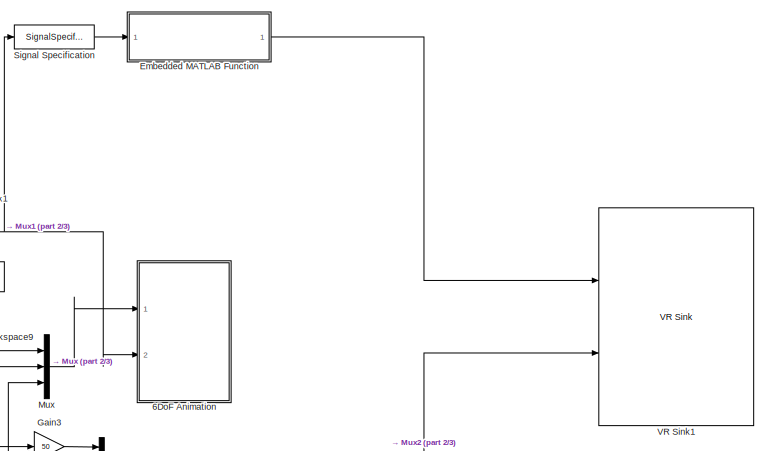
[diagram: root canvas - part 1/3, middle right region]
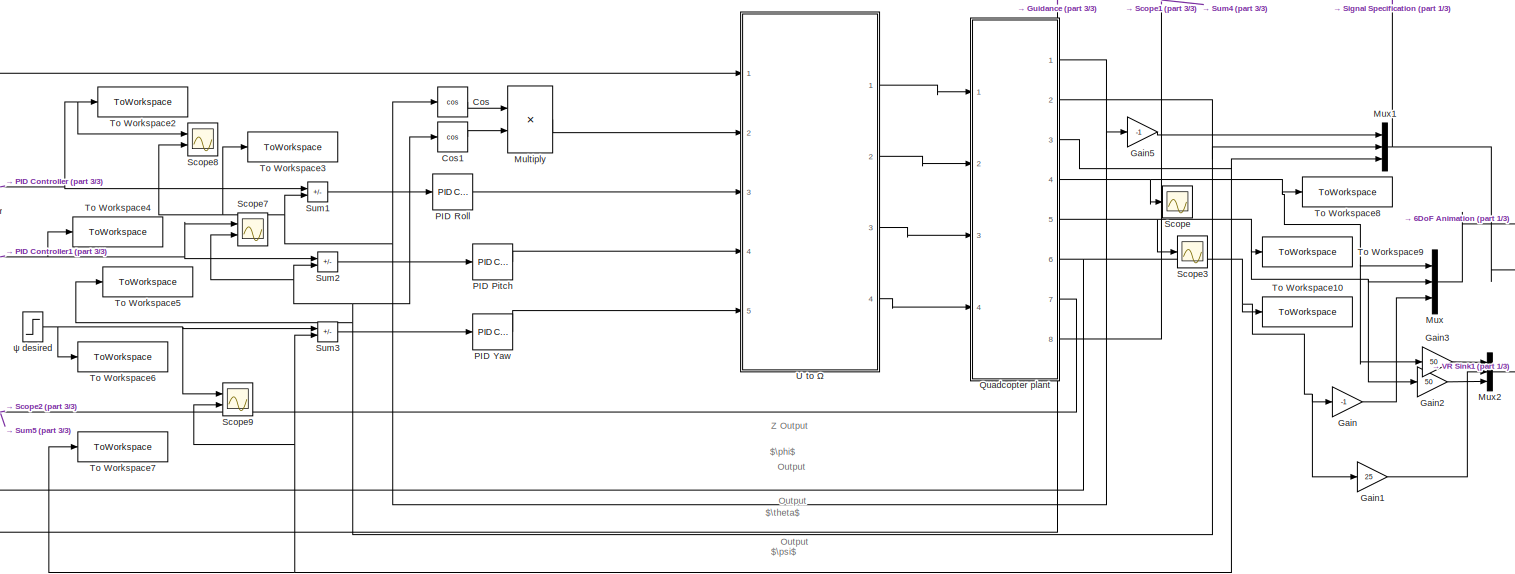
[diagram: root canvas - part 2/3, center side, full height]
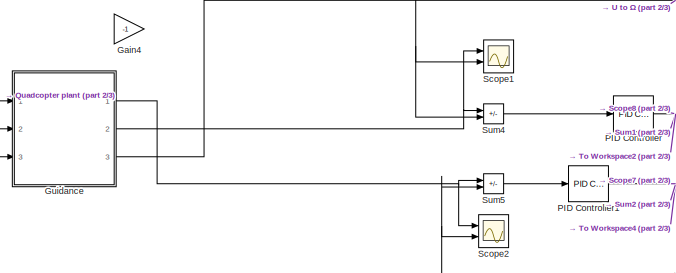
[diagram: root canvas - part 3/3, middle left region]
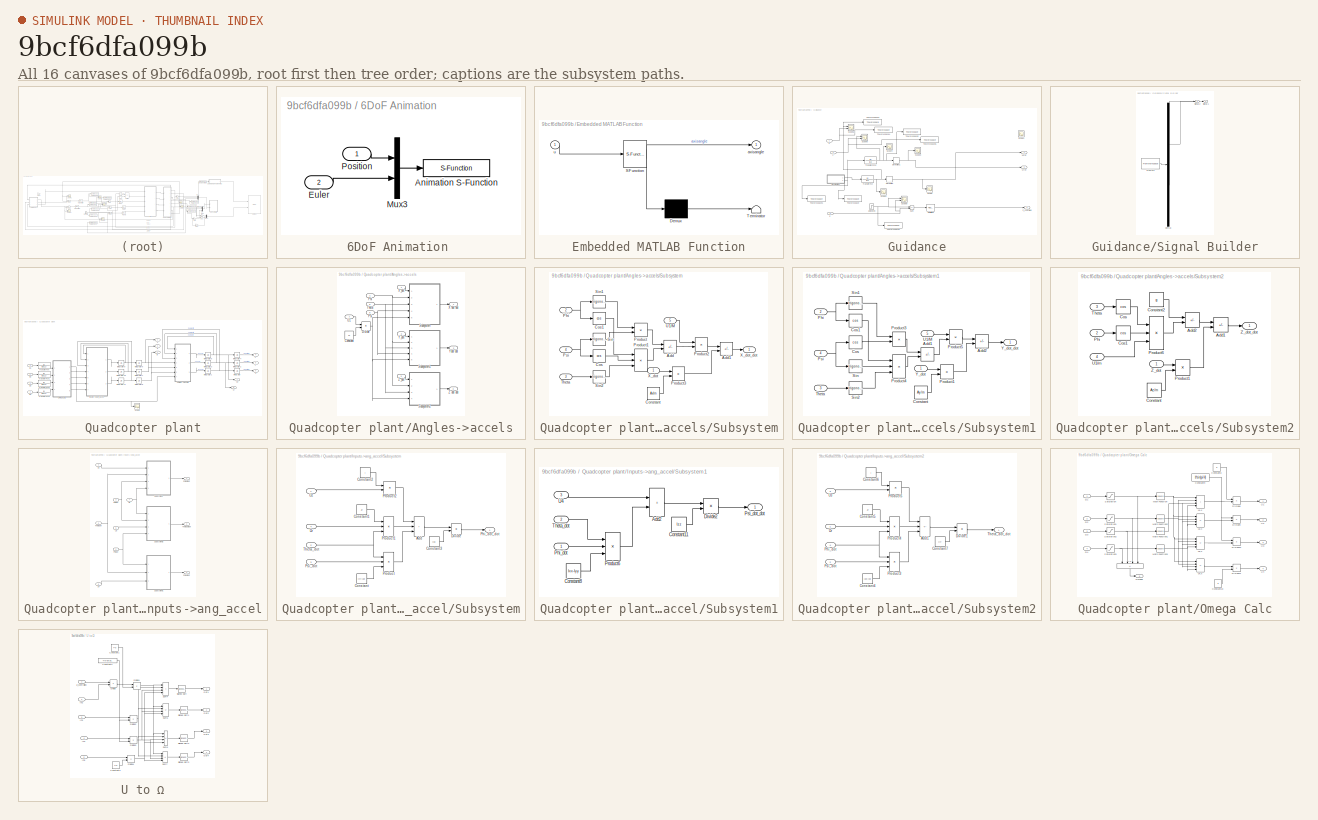
[diagram: thumbnail index - all 16 canvases of the model, root first then tree order]
MODEL slx_9bcf6dfa099b
KIND model
CONFIG AbsTol = auto
CONFIG EnableMultiTasking = off
CONFIG FixedStep = auto
CONFIG MaxStep = auto
CONFIG MinStep = auto
CONFIG RelTol = 1e-3
CONFIG SampleTimeConstraint = Unconstrained
CONFIG SolverName = VariableStepAuto
CONFIG StartTime = 0.0
CONFIG StopTime = 50
BLOCK [SubSystem] 6DoF Animation 
  Ports = [2]
  RequestExecContextInheritance = off
BLOCK [S-Function] 6DoF Animation /Animation S-Function
  EnableBusSupport = off
  FunctionName = sixdofanim
  Parameters = Config
  Ports = [1]
  SFcnIsStateOwnerBlock = off
  SFunctionDeploymentMode = off
BLOCK [Inport] 6DoF Animation /Euler
  Port = 2
BLOCK [Mux] 6DoF Animation /Mux3
  Inputs = 2
  Ports = [2, 1]
BLOCK [Inport] 6DoF Animation /Position
BLOCK [Trigonometry] Cos
  Operator = cos
  Ports = [1, 1]
BLOCK [Trigonometry] Cos1
  Operator = cos
  Ports = [1, 1]
BLOCK [SubSystem] Embedded MATLAB Function
  ErrorFcn = Stateflow.Translate.translate
  PermitHierarchicalResolution = ExplicitOnly
  Ports = [1, 1]
  RequestExecContextInheritance = off
  SFBlockType = MATLAB Function
  TreatAsAtomicUnit = on
BLOCK [Demux] Embedded MATLAB Function/ Demux 
  Outputs = 1
  Ports = [1, 1]
BLOCK [S-Function] Embedded MATLAB Function/ SFunction 
  EnableBusSupport = on
  FunctionName = sf_sfun
  PortCounts = [1 2]
  Ports = [1, 2]
  SFcnIsStateOwnerBlock = off
  SFunctionDeploymentMode = off
  Tag = Stateflow S-Function 2
BLOCK [Terminator] Embedded MATLAB Function/ Terminator 
BLOCK [Outport] Embedded MATLAB Function/axisangle
BLOCK [Inport] Embedded MATLAB Function/u
BLOCK [Gain] Gain
  Gain = -1
BLOCK [Gain] Gain1
  Gain = 25
BLOCK [Gain] Gain2
  Gain = 50
BLOCK [Gain] Gain3
  Gain = 50
BLOCK [Gain] Gain4
  Gain = -1
BLOCK [Gain] Gain5
  Gain = -1
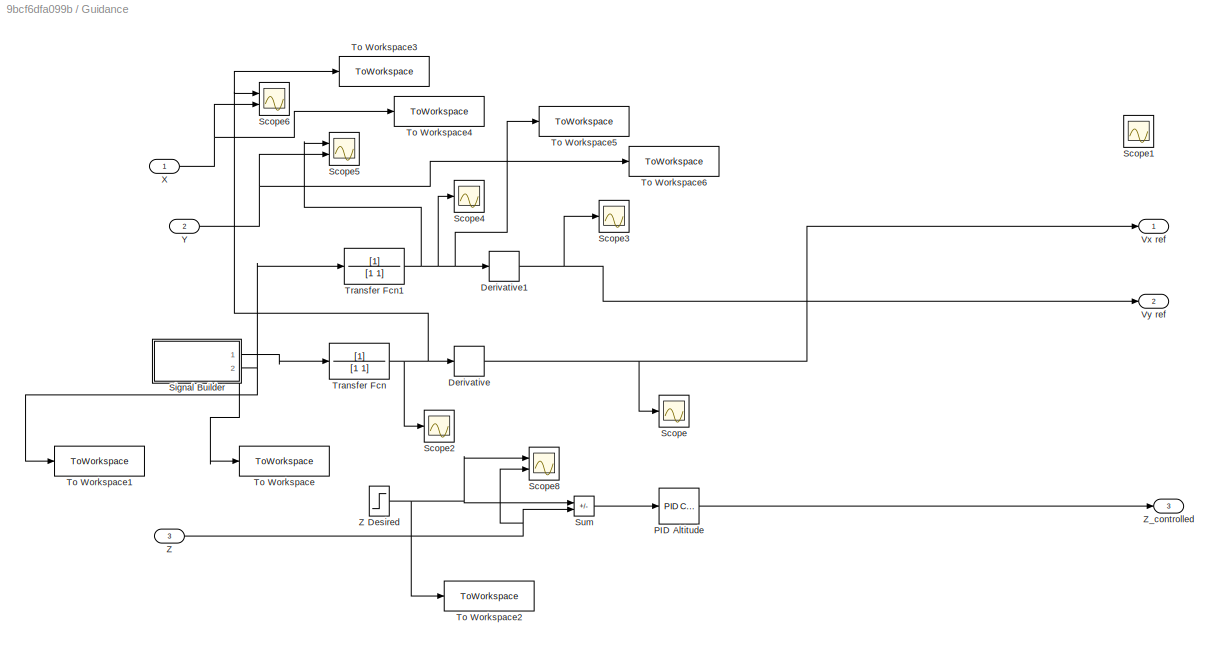
BLOCK [SubSystem] Guidance
  Ports = [3, 3]
  RequestExecContextInheritance = off
BLOCK [Derivative] Guidance/Derivative
BLOCK [Derivative] Guidance/Derivative1
BLOCK [Reference] Guidance/PID Altitude  REF=pid_lib/PID Controller
  Ports = [1, 1]
  SourceBlock = pid_lib/PID Controller
  SourceProductBaseCode = SL
  SourceType = PID 1dof
BLOCK [Scope] Guidance/Scope
  Floating = off
  NumInputPorts = 1
  Ports = [1]
  ScopeSpecificationString = Simulink.scopes.TimeScopeBlockCfg('CurrentConfiguration', extmgr.ConfigurationSet(extmgr.Configuration('Core','General UI',true),extmgr.Configuration('Core','Source UI',true),extmgr.Configuration('Sources','WiredSimulink',true,'DataLoggingVariableName','ScopeData3'),extmgr.Configuration('Visuals','Time Domain',true,'SerializedDisplays',{struct('MinYLimReal','-6.26062','MaxYLimReal','6.30656','YLab...<+1369ch>
BLOCK [Scope] Guidance/Scope1
  Floating = off
  NumInputPorts = 1
  Ports = [1]
  ScopeSpecificationString = Simulink.scopes.TimeScopeBlockCfg('CurrentConfiguration', extmgr.ConfigurationSet(extmgr.Configuration('Core','General UI',true),extmgr.Configuration('Core','Source UI',true),extmgr.Configuration('Sources','WiredSimulink',true,'DataLoggingVariableName','ScopeData4'),extmgr.Configuration('Visuals','Time Domain',true,'SerializedDisplays',{struct('MinYLimReal','0.9','MaxYLimReal','1.1','YLabelReal','...<+1367ch>
BLOCK [Scope] Guidance/Scope2
  Floating = off
  NumInputPorts = 1
  Ports = [1]
  ScopeSpecificationString = Simulink.scopes.TimeScopeBlockCfg('CurrentConfiguration', extmgr.ConfigurationSet(extmgr.Configuration('Core','General UI',true),extmgr.Configuration('Core','Source UI',true),extmgr.Configuration('Sources','WiredSimulink',true,'DataLoggingVariableName','ScopeData4'),extmgr.Configuration('Visuals','Time Domain',true,'SerializedDisplays',{struct('MinYLimReal','-0.65147','MaxYLimReal','5.68322','YLab...<+1371ch>
BLOCK [Scope] Guidance/Scope3
  Floating = off
  NumInputPorts = 1
  Ports = [1]
  ScopeSpecificationString = Simulink.scopes.TimeScopeBlockCfg('CurrentConfiguration', extmgr.ConfigurationSet(extmgr.Configuration('Core','General UI',true),extmgr.Configuration('Core','Source UI',true),extmgr.Configuration('Sources','WiredSimulink',true,'DataLoggingVariableName','ScopeData5'),extmgr.Configuration('Visuals','Time Domain',true,'SerializedDisplays',{struct('MinYLimReal','-6.25','MaxYLimReal','6.25','YLabelReal...<+1352ch>
BLOCK [Scope] Guidance/Scope4
  Floating = off
  NumInputPorts = 1
  Ports = [1]
  ScopeSpecificationString = Simulink.scopes.TimeScopeBlockCfg('CurrentConfiguration', extmgr.ConfigurationSet(extmgr.Configuration('Core','General UI',true),extmgr.Configuration('Core','Source UI',true),extmgr.Configuration('Sources','WiredSimulink',true,'DataLoggingVariableName','ScopeData6'),extmgr.Configuration('Visuals','Time Domain',true,'SerializedDisplays',{struct('MinYLimReal','-0.625','MaxYLimReal','5.625','YLabelRe...<+1360ch>
BLOCK [Scope] Guidance/Scope5
  Floating = off
  NumInputPorts = 2
  Ports = [2]
  ScopeSpecificationString = Simulink.scopes.TimeScopeBlockCfg('CurrentConfiguration', extmgr.ConfigurationSet(extmgr.Configuration('Core','General UI',true),extmgr.Configuration('Core','Source UI',true),extmgr.Configuration('Sources','WiredSimulink',true,'DataLoggingVariableName','ScopeData8'),extmgr.Configuration('Visuals','Time Domain',true,'SerializedDisplays',{struct('MinYLimReal','-0.72977','MaxYLimReal','6.2948','YLabe...<+1372ch>
BLOCK [Scope] Guidance/Scope6
  Floating = off
  NumInputPorts = 2
  Ports = [2]
  ScopeSpecificationString = Simulink.scopes.TimeScopeBlockCfg('CurrentConfiguration', extmgr.ConfigurationSet(extmgr.Configuration('Core','General UI',true),extmgr.Configuration('Core','Source UI',true),extmgr.Configuration('Sources','WiredSimulink',true,'DataLoggingVariableName','ScopeData9'),extmgr.Configuration('Visuals','Time Domain',true,'SerializedDisplays',{struct('MinYLimReal','-0.69281','MaxYLimReal','5.87318','YLab...<+1375ch>
BLOCK [Scope] Guidance/Scope8
  Floating = off
  NumInputPorts = 2
  Ports = [2]
  ScopeSpecificationString = Simulink.scopes.TimeScopeBlockCfg('CurrentConfiguration', extmgr.ConfigurationSet(extmgr.Configuration('Core','General UI',true),extmgr.Configuration('Core','Source UI',true),extmgr.Configuration('Sources','WiredSimulink',true,'DataLoggingVariableName','ScopeData1'),extmgr.Configuration('Visuals','Time Domain',true,'SerializedDisplays',{struct('MinYLimReal','-0.65127','MaxYLimReal','5.86144','YLab...<+1372ch>
BLOCK [SubSystem] Guidance/Signal Builder
  ClipboardFcn = sigbuilder_block('clipboard');
  CloseFcn = sigbuilder_block('close');
  ContinueFcn = sigbuilder_block('continue');
  CopyFcn = sigbuilder_block('copy');
  DeleteFcn = sigbuilder_block('delete');
  LoadFcn = sigbuilder_block('load');
  MaskHideContents = on
  ModelCloseFcn = sigbuilder_block('modelClose');
  NameChangeFcn = sigbuilder_block('namechange');
  OpenFcn = sigbuilder_block('open',[5.5 -8 949 380.5 ]);
  PauseFcn = sigbuilder_block('pause');
  Ports = [0, 2]
  PreSaveFcn = sigbuilder_block('preSave');
  RequestExecContextInheritance = off
  StartFcn = sigbuilder_block('start');
  StopFcn = sigbuilder_block('stop');
  Tag = STV Subsys
BLOCK [Demux] Guidance/Signal Builder/Demux
  DisplayOption = none
  Outputs = 2
  Ports = [1, 2]
  Tag = STV Demux
BLOCK [FromWorkspace] Guidance/Signal Builder/FromWs
  Tag = STV FromWs
  VariableName = tuvar
BLOCK [Outport] Guidance/Signal Builder/Signal 1
  Port = 2
  Tag = STV Outport
BLOCK [Outport] Guidance/Signal Builder/Signal 2
  Tag = STV Outport
BLOCK [Sum] Guidance/Sum
  IconShape = rectangular
  Inputs = +-
  Ports = [2, 1]
BLOCK [ToWorkspace] Guidance/To Workspace
  FixptAsFi = on
  MaxDataPoints = inf
  Ports = [1]
  SampleTime = -1
  VariableName = x_ref
BLOCK [ToWorkspace] Guidance/To Workspace1
  FixptAsFi = on
  MaxDataPoints = inf
  Ports = [1]
  SampleTime = -1
  VariableName = y_ref
BLOCK [ToWorkspace] Guidance/To Workspace2
  FixptAsFi = on
  MaxDataPoints = inf
  Ports = [1]
  SampleTime = -1
  VariableName = z_ref
BLOCK [ToWorkspace] Guidance/To Workspace3
  FixptAsFi = on
  MaxDataPoints = inf
  Ports = [1]
  SampleTime = -1
  VariableName = XGuidRef
BLOCK [ToWorkspace] Guidance/To Workspace4
  FixptAsFi = on
  MaxDataPoints = inf
  Ports = [1]
  SampleTime = -1
  VariableName = XGuidOut
BLOCK [ToWorkspace] Guidance/To Workspace5
  FixptAsFi = on
  MaxDataPoints = inf
  Ports = [1]
  SampleTime = -1
  VariableName = YGuidRef
BLOCK [ToWorkspace] Guidance/To Workspace6
  FixptAsFi = on
  MaxDataPoints = inf
  Ports = [1]
  SampleTime = -1
  VariableName = YGuidOut
BLOCK [TransferFcn] Guidance/Transfer Fcn
  Denominator = [1 1]
BLOCK [TransferFcn] Guidance/Transfer Fcn1
  Denominator = [1 1]
BLOCK [Outport] Guidance/Vx ref
BLOCK [Outport] Guidance/Vy ref
  Port = 2
BLOCK [Inport] Guidance/X
BLOCK [Inport] Guidance/Y
  Port = 2
BLOCK [Inport] Guidance/Z
  Port = 3
BLOCK [Step] Guidance/Z Desired
  After = 5
  SampleTime = 0
BLOCK [Outport] Guidance/Z_controlled
  Port = 3
BLOCK [Product] Multiply
  Ports = [2, 1]
BLOCK [Mux] Mux
  DisplayOption = bar
  Inputs = 3
  Ports = [3, 1]
BLOCK [Mux] Mux1
  DisplayOption = bar
  Inputs = 3
  Ports = [3, 1]
BLOCK [Mux] Mux2
  DisplayOption = bar
  Inputs = 3
  Ports = [3, 1]
BLOCK [Reference] PID Controller  REF=pid_lib/PID Controller
  Ports = [1, 1]
  SourceBlock = pid_lib/PID Controller
  SourceProductBaseCode = SL
  SourceType = PID 1dof
BLOCK [Reference] PID Controller1  REF=pid_lib/PID Controller
  Ports = [1, 1]
  SourceBlock = pid_lib/PID Controller
  SourceProductBaseCode = SL
  SourceType = PID 1dof
BLOCK [Reference] PID Pitch  REF=pid_lib/PID Controller
  Ports = [1, 1]
  SourceBlock = pid_lib/PID Controller
  SourceProductBaseCode = SL
  SourceType = PID 1dof
BLOCK [Reference] PID Roll  REF=pid_lib/PID Controller
  Ports = [1, 1]
  SourceBlock = pid_lib/PID Controller
  SourceProductBaseCode = SL
  SourceType = PID 1dof
BLOCK [Reference] PID Yaw  REF=pid_lib/PID Controller
  Ports = [1, 1]
  SourceBlock = pid_lib/PID Controller
  SourceProductBaseCode = SL
  SourceType = PID 1dof
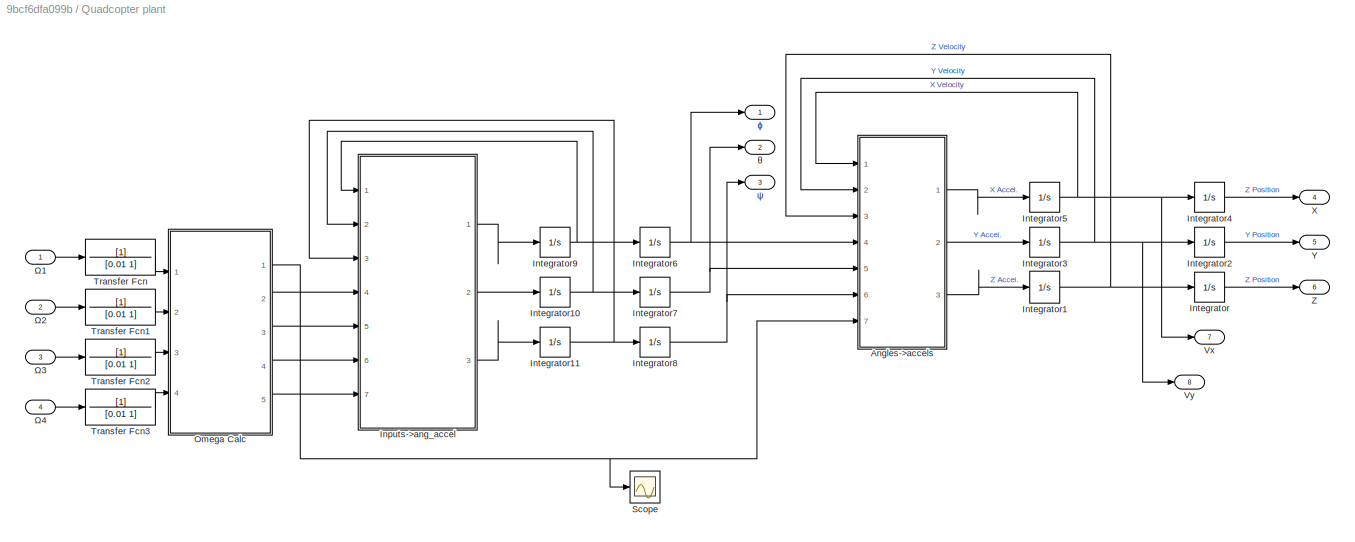
BLOCK [SubSystem] Quadcopter plant
  Ports = [4, 8]
  RequestExecContextInheritance = off
BLOCK [SubSystem] Quadcopter plant/Angles->accels
  Ports = [7, 3]
  RequestExecContextInheritance = off
BLOCK [Constant] Quadcopter plant/Angles->accels/Constant
  Value = m
BLOCK [Product] Quadcopter plant/Angles->accels/Divide
  Inputs = */
  Ports = [2, 1]
BLOCK [Inport] Quadcopter plant/Angles->accels/Phi
  Port = 4
BLOCK [Inport] Quadcopter plant/Angles->accels/Psi
  Port = 6
BLOCK [SubSystem] Quadcopter plant/Angles->accels/Subsystem
  Ports = [5, 1]
  RequestExecContextInheritance = off
BLOCK [Sum] Quadcopter plant/Angles->accels/Subsystem/Add
  IconShape = rectangular
  Inputs = +-
  Ports = [2, 1]
BLOCK [Sum] Quadcopter plant/Angles->accels/Subsystem/Add1
  IconShape = rectangular
  Inputs = +-
  Ports = [2, 1]
BLOCK [Constant] Quadcopter plant/Angles->accels/Subsystem/Constant
  Value = Ax/m
BLOCK [Trigonometry] Quadcopter plant/Angles->accels/Subsystem/Cos
  Operator = cos
  Ports = [1, 1]
BLOCK [Trigonometry] Quadcopter plant/Angles->accels/Subsystem/Cos1
  Operator = cos
  Ports = [1, 1]
BLOCK [Inport] Quadcopter plant/Angles->accels/Subsystem/Phi
  Port = 2
BLOCK [Product] Quadcopter plant/Angles->accels/Subsystem/Product
  Ports = [2, 1]
BLOCK [Product] Quadcopter plant/Angles->accels/Subsystem/Product1
  Inputs = 3
  Ports = [3, 1]
BLOCK [Product] Quadcopter plant/Angles->accels/Subsystem/Product2
  Ports = [2, 1]
BLOCK [Product] Quadcopter plant/Angles->accels/Subsystem/Product3
  Ports = [2, 1]
BLOCK [Inport] Quadcopter plant/Angles->accels/Subsystem/Psi
  Port = 4
BLOCK [Trigonometry] Quadcopter plant/Angles->accels/Subsystem/Sin
  Ports = [1, 1]
BLOCK [Trigonometry] Quadcopter plant/Angles->accels/Subsystem/Sin1
  Ports = [1, 1]
BLOCK [Trigonometry] Quadcopter plant/Angles->accels/Subsystem/Sin2
  Ports = [1, 1]
BLOCK [Inport] Quadcopter plant/Angles->accels/Subsystem/Theta
  Port = 3
BLOCK [Inport] Quadcopter plant/Angles->accels/Subsystem/U1//M
  Port = 5
BLOCK [Inport] Quadcopter plant/Angles->accels/Subsystem/X_dot
BLOCK [Outport] Quadcopter plant/Angles->accels/Subsystem/X_dot_dot
  VectorParamsAs1DForOutWhenUnconnected = off
BLOCK [SubSystem] Quadcopter plant/Angles->accels/Subsystem1
  Ports = [5, 1]
  RequestExecContextInheritance = off
BLOCK [Sum] Quadcopter plant/Angles->accels/Subsystem1/Add1
  IconShape = rectangular
  Inputs = -+
  Ports = [2, 1]
BLOCK [Sum] Quadcopter plant/Angles->accels/Subsystem1/Add2
  IconShape = rectangular
  Inputs = +-
  Ports = [2, 1]
BLOCK [Constant] Quadcopter plant/Angles->accels/Subsystem1/Constant
  Value = Ay/m
BLOCK [Trigonometry] Quadcopter plant/Angles->accels/Subsystem1/Cos
  Operator = cos
  Ports = [1, 1]
BLOCK [Trigonometry] Quadcopter plant/Angles->accels/Subsystem1/Cos1
  Operator = cos
  Ports = [1, 1]
BLOCK [Inport] Quadcopter plant/Angles->accels/Subsystem1/Phi
  Port = 2
BLOCK [Product] Quadcopter plant/Angles->accels/Subsystem1/Product1
  Ports = [2, 1]
BLOCK [Product] Quadcopter plant/Angles->accels/Subsystem1/Product3
  Ports = [2, 1]
BLOCK [Product] Quadcopter plant/Angles->accels/Subsystem1/Product4
  Inputs = 3
  Ports = [3, 1]
BLOCK [Product] Quadcopter plant/Angles->accels/Subsystem1/Product5
  Ports = [2, 1]
BLOCK [Inport] Quadcopter plant/Angles->accels/Subsystem1/Psi
  Port = 4
BLOCK [Trigonometry] Quadcopter plant/Angles->accels/Subsystem1/Sin
  Ports = [1, 1]
BLOCK [Trigonometry] Quadcopter plant/Angles->accels/Subsystem1/Sin1
  Ports = [1, 1]
BLOCK [Trigonometry] Quadcopter plant/Angles->accels/Subsystem1/Sin2
  Ports = [1, 1]
BLOCK [Inport] Quadcopter plant/Angles->accels/Subsystem1/Theta
  Port = 3
BLOCK [Inport] Quadcopter plant/Angles->accels/Subsystem1/U1//M
  Port = 5
BLOCK [Inport] Quadcopter plant/Angles->accels/Subsystem1/Y_dot
BLOCK [Outport] Quadcopter plant/Angles->accels/Subsystem1/Y_dot_dot
  VectorParamsAs1DForOutWhenUnconnected = off
BLOCK [SubSystem] Quadcopter plant/Angles->accels/Subsystem2
  Ports = [4, 1]
  RequestExecContextInheritance = off
BLOCK [Sum] Quadcopter plant/Angles->accels/Subsystem2/Add1
  IconShape = rectangular
  Inputs = +-
  Ports = [2, 1]
BLOCK [Sum] Quadcopter plant/Angles->accels/Subsystem2/Add2
  IconShape = rectangular
  Inputs = -+
  Ports = [2, 1]
BLOCK [Constant] Quadcopter plant/Angles->accels/Subsystem2/Constant
  Value = Az/m
BLOCK [Constant] Quadcopter plant/Angles->accels/Subsystem2/Constant2
  Value = g
BLOCK [Trigonometry] Quadcopter plant/Angles->accels/Subsystem2/Cos
  Operator = cos
  Ports = [1, 1]
BLOCK [Trigonometry] Quadcopter plant/Angles->accels/Subsystem2/Cos1
  Operator = cos
  Ports = [1, 1]
BLOCK [Inport] Quadcopter plant/Angles->accels/Subsystem2/Phi
  Port = 2
BLOCK [Product] Quadcopter plant/Angles->accels/Subsystem2/Product1
  Ports = [2, 1]
BLOCK [Product] Quadcopter plant/Angles->accels/Subsystem2/Product6
  Inputs = 3
  Ports = [3, 1]
BLOCK [Inport] Quadcopter plant/Angles->accels/Subsystem2/Theta
  Port = 3
BLOCK [Inport] Quadcopter plant/Angles->accels/Subsystem2/U1//m
  Port = 4
BLOCK [Inport] Quadcopter plant/Angles->accels/Subsystem2/Z_dot
BLOCK [Outport] Quadcopter plant/Angles->accels/Subsystem2/Z_dot_dot
  VectorParamsAs1DForOutWhenUnconnected = off
BLOCK [Inport] Quadcopter plant/Angles->accels/Theta
  Port = 5
BLOCK [Inport] Quadcopter plant/Angles->accels/U1
  Port = 7
BLOCK [Outport] Quadcopter plant/Angles->accels/X dot dot
  VectorParamsAs1DForOutWhenUnconnected = off
BLOCK [Inport] Quadcopter plant/Angles->accels/X_dot
BLOCK [Inport] Quadcopter plant/Angles->accels/Y_dot
  Port = 2
BLOCK [Outport] Quadcopter plant/Angles->accels/Ydot dot
  Port = 2
  VectorParamsAs1DForOutWhenUnconnected = off
BLOCK [Outport] Quadcopter plant/Angles->accels/Z dot dot
  Port = 3
  VectorParamsAs1DForOutWhenUnconnected = off
BLOCK [Inport] Quadcopter plant/Angles->accels/Z_dot
  NameLocation = top
  Port = 3
BLOCK [SubSystem] Quadcopter plant/Inputs->ang_accel
  Ports = [7, 3]
  RequestExecContextInheritance = off
BLOCK [Inport] Quadcopter plant/Inputs->ang_accel/Phi dot
BLOCK [Outport] Quadcopter plant/Inputs->ang_accel/Phi dot dot
  VectorParamsAs1DForOutWhenUnconnected = off
BLOCK [Inport] Quadcopter plant/Inputs->ang_accel/Psi dot
  Port = 3
BLOCK [Outport] Quadcopter plant/Inputs->ang_accel/Psi dot dot
  Port = 3
  VectorParamsAs1DForOutWhenUnconnected = off
BLOCK [SubSystem] Quadcopter plant/Inputs->ang_accel/Subsystem
  Ports = [4, 1]
  RequestExecContextInheritance = off
BLOCK [Sum] Quadcopter plant/Inputs->ang_accel/Subsystem/Add
  IconShape = rectangular
  Inputs = +++
  Ports = [3, 1]
BLOCK [Constant] Quadcopter plant/Inputs->ang_accel/Subsystem/Constant
  Value = Iyy-Izz
BLOCK [Constant] Quadcopter plant/Inputs->ang_accel/Subsystem/Constant1
  Value = Jr
BLOCK [Constant] Quadcopter plant/Inputs->ang_accel/Subsystem/Constant2
  Value = l
BLOCK [Constant] Quadcopter plant/Inputs->ang_accel/Subsystem/Constant3
  Value = Ixx
BLOCK [Product] Quadcopter plant/Inputs->ang_accel/Subsystem/Divide
  Inputs = */
  Ports = [2, 1]
BLOCK [Outport] Quadcopter plant/Inputs->ang_accel/Subsystem/Phi_dot_dot
  VectorParamsAs1DForOutWhenUnconnected = off
BLOCK [Product] Quadcopter plant/Inputs->ang_accel/Subsystem/Product
  Inputs = 3
  Ports = [3, 1]
BLOCK [Product] Quadcopter plant/Inputs->ang_accel/Subsystem/Product1
  Inputs = 3
  Ports = [3, 1]
BLOCK [Product] Quadcopter plant/Inputs->ang_accel/Subsystem/Product2
  Ports = [2, 1]
BLOCK [Inport] Quadcopter plant/Inputs->ang_accel/Subsystem/Psi_dot
  Port = 3
BLOCK [Inport] Quadcopter plant/Inputs->ang_accel/Subsystem/Theta_dot
  Port = 2
BLOCK [Inport] Quadcopter plant/Inputs->ang_accel/Subsystem/U2
BLOCK [Inport] Quadcopter plant/Inputs->ang_accel/Subsystem/Ωr
  Port = 4
BLOCK [SubSystem] Quadcopter plant/Inputs->ang_accel/Subsystem1
  Ports = [3, 1]
  RequestExecContextInheritance = off
BLOCK [Sum] Quadcopter plant/Inputs->ang_accel/Subsystem1/Add2
  IconShape = rectangular
  Ports = [2, 1]
BLOCK [Constant] Quadcopter plant/Inputs->ang_accel/Subsystem1/Constant11
  Value = Izz
BLOCK [Constant] Quadcopter plant/Inputs->ang_accel/Subsystem1/Constant8
  Value = Ixx-Iyy
BLOCK [Product] Quadcopter plant/Inputs->ang_accel/Subsystem1/Divide2
  Inputs = */
  Ports = [2, 1]
BLOCK [Inport] Quadcopter plant/Inputs->ang_accel/Subsystem1/Phi_dot
BLOCK [Product] Quadcopter plant/Inputs->ang_accel/Subsystem1/Product6
  Inputs = 3
  Ports = [3, 1]
BLOCK [Outport] Quadcopter plant/Inputs->ang_accel/Subsystem1/Psi_dot_dot
  VectorParamsAs1DForOutWhenUnconnected = off
BLOCK [Inport] Quadcopter plant/Inputs->ang_accel/Subsystem1/Theta_dot
  Port = 2
BLOCK [Inport] Quadcopter plant/Inputs->ang_accel/Subsystem1/U4
  Port = 3
BLOCK [SubSystem] Quadcopter plant/Inputs->ang_accel/Subsystem2
  Ports = [4, 1]
  RequestExecContextInheritance = off
BLOCK [Sum] Quadcopter plant/Inputs->ang_accel/Subsystem2/Add1
  IconShape = rectangular
  Inputs = +-+
  Ports = [3, 1]
BLOCK [Constant] Quadcopter plant/Inputs->ang_accel/Subsystem2/Constant4
  Value = Izz-Ixx
BLOCK [Constant] Quadcopter plant/Inputs->ang_accel/Subsystem2/Constant5
  Value = Jr
BLOCK [Constant] Quadcopter plant/Inputs->ang_accel/Subsystem2/Constant6
  Value = l
BLOCK [Constant] Quadcopter plant/Inputs->ang_accel/Subsystem2/Constant7
  Value = Iyy
BLOCK [Product] Quadcopter plant/Inputs->ang_accel/Subsystem2/Divide1
  Inputs = */
  Ports = [2, 1]
BLOCK [Inport] Quadcopter plant/Inputs->ang_accel/Subsystem2/Phi_dot
  Port = 4
BLOCK [Product] Quadcopter plant/Inputs->ang_accel/Subsystem2/Product3
  Inputs = 3
  Ports = [3, 1]
BLOCK [Product] Quadcopter plant/Inputs->ang_accel/Subsystem2/Product4
  Inputs = 3
  Ports = [3, 1]
BLOCK [Product] Quadcopter plant/Inputs->ang_accel/Subsystem2/Product5
  Ports = [2, 1]
BLOCK [Inport] Quadcopter plant/Inputs->ang_accel/Subsystem2/Psi_dot
  Port = 2
BLOCK [Outport] Quadcopter plant/Inputs->ang_accel/Subsystem2/Theta_dot_dot
  VectorParamsAs1DForOutWhenUnconnected = off
BLOCK [Inport] Quadcopter plant/Inputs->ang_accel/Subsystem2/U3
  Port = 3
BLOCK [Inport] Quadcopter plant/Inputs->ang_accel/Subsystem2/Ωr
BLOCK [Inport] Quadcopter plant/Inputs->ang_accel/Theta dot
  Port = 2
BLOCK [Outport] Quadcopter plant/Inputs->ang_accel/Theta dot dot
  Port = 2
  VectorParamsAs1DForOutWhenUnconnected = off
BLOCK [Inport] Quadcopter plant/Inputs->ang_accel/U2
  Port = 4
BLOCK [Inport] Quadcopter plant/Inputs->ang_accel/U3
  Port = 5
BLOCK [Inport] Quadcopter plant/Inputs->ang_accel/U4
  Port = 6
BLOCK [Inport] Quadcopter plant/Inputs->ang_accel/Ωr
  Port = 7
BLOCK [Integrator] Quadcopter plant/Integrator
  LimitOutput = on
  LowerSaturationLimit = 0
  Ports = [1, 1]
BLOCK [Integrator] Quadcopter plant/Integrator1
  Ports = [1, 1]
BLOCK [Integrator] Quadcopter plant/Integrator10
  LowerSaturationLimit = -10000
  Ports = [1, 1]
  UpperSaturationLimit = 10000
BLOCK [Integrator] Quadcopter plant/Integrator11
  LowerSaturationLimit = -10000
  Ports = [1, 1]
  UpperSaturationLimit = 10000
BLOCK [Integrator] Quadcopter plant/Integrator2
  Ports = [1, 1]
BLOCK [Integrator] Quadcopter plant/Integrator3
  Ports = [1, 1]
BLOCK [Integrator] Quadcopter plant/Integrator4
  Ports = [1, 1]
BLOCK [Integrator] Quadcopter plant/Integrator5
  Ports = [1, 1]
BLOCK [Integrator] Quadcopter plant/Integrator6
  Ports = [1, 1]
  WrapState = on
  WrappedStateLowerValue = -pi/2
  WrappedStateUpperValue = pi/2
BLOCK [Integrator] Quadcopter plant/Integrator7
  Ports = [1, 1]
  WrapState = on
  WrappedStateLowerValue = -pi/3
  WrappedStateUpperValue = pi/3
BLOCK [Integrator] Quadcopter plant/Integrator8
  Ports = [1, 1]
BLOCK [Integrator] Quadcopter plant/Integrator9
  Ports = [1, 1]
BLOCK [SubSystem] Quadcopter plant/Omega Calc
  Ports = [4, 5]
  RequestExecContextInheritance = off
BLOCK [Sum] Quadcopter plant/Omega Calc/A1
  IconShape = rectangular
  Inputs = -+-+
  NameLocation = left
  Ports = [4, 1]
BLOCK [Constant] Quadcopter plant/Omega Calc/Constant10
  Value = d
BLOCK [Constant] Quadcopter plant/Omega Calc/Constant8
  Value = b
BLOCK [Constant] Quadcopter plant/Omega Calc/Constant9
  Value = b*sin(pi/4)
BLOCK [Product] Quadcopter plant/Omega Calc/Divide10
  Inputs = **
  Ports = [2, 1]
BLOCK [Product] Quadcopter plant/Omega Calc/Divide11
  Inputs = **
  Ports = [2, 1]
BLOCK [Product] Quadcopter plant/Omega Calc/Divide8
  Inputs = **
  Ports = [2, 1]
BLOCK [Product] Quadcopter plant/Omega Calc/Divide9
  Inputs = **
  Ports = [2, 1]
BLOCK [Math] Quadcopter plant/Omega Calc/Math Function
  Operator = square
  Ports = [1, 1]
  SignedPower = on
BLOCK [Math] Quadcopter plant/Omega Calc/Math Function1
  Operator = square
  Ports = [1, 1]
  SignedPower = on
BLOCK [Math] Quadcopter plant/Omega Calc/Math Function2
  Operator = square
  Ports = [1, 1]
  SignedPower = on
BLOCK [Math] Quadcopter plant/Omega Calc/Math Function3
  Operator = square
  Ports = [1, 1]
  SignedPower = on
BLOCK [Outport] Quadcopter plant/Omega Calc/Omega
  Port = 5
  VectorParamsAs1DForOutWhenUnconnected = off
BLOCK [Saturate] Quadcopter plant/Omega Calc/Saturation
  LowerLimit = 0
  UpperLimit = inf
BLOCK [Saturate] Quadcopter plant/Omega Calc/Saturation1
  LowerLimit = 0
  UpperLimit = inf
BLOCK [Saturate] Quadcopter plant/Omega Calc/Saturation2
  LowerLimit = 0
  UpperLimit = inf
BLOCK [Saturate] Quadcopter plant/Omega Calc/Saturation3
  LowerLimit = 0
  UpperLimit = inf
BLOCK [Outport] Quadcopter plant/Omega Calc/U1
  VectorParamsAs1DForOutWhenUnconnected = off
BLOCK [Outport] Quadcopter plant/Omega Calc/U2
  Port = 2
  VectorParamsAs1DForOutWhenUnconnected = off
BLOCK [Outport] Quadcopter plant/Omega Calc/U3
  Port = 3
  VectorParamsAs1DForOutWhenUnconnected = off
BLOCK [Outport] Quadcopter plant/Omega Calc/U4
  Port = 4
  VectorParamsAs1DForOutWhenUnconnected = off
BLOCK [Sum] Quadcopter plant/Omega Calc/u1,x
  IconShape = rectangular
  Inputs = ++++
  Ports = [4, 1]
BLOCK [Sum] Quadcopter plant/Omega Calc/u2,x
  IconShape = rectangular
  Inputs = +--+
  Ports = [4, 1]
BLOCK [Sum] Quadcopter plant/Omega Calc/u3,x
  IconShape = rectangular
  Inputs = ++--
  Ports = [4, 1]
BLOCK [Sum] Quadcopter plant/Omega Calc/u4,x
  IconShape = rectangular
  Inputs = +-+-
  Ports = [4, 1]
BLOCK [Inport] Quadcopter plant/Omega Calc/Ω1
BLOCK [Inport] Quadcopter plant/Omega Calc/Ω2
  Port = 2
BLOCK [Inport] Quadcopter plant/Omega Calc/Ω3
  Port = 3
BLOCK [Inport] Quadcopter plant/Omega Calc/Ω4
  Port = 4
BLOCK [Scope] Quadcopter plant/Scope
  Floating = off
  NumInputPorts = 1
  Ports = [1]
  ScopeSpecificationString = Simulink.scopes.TimeScopeBlockCfg('CurrentConfiguration', extmgr.ConfigurationSet(extmgr.Configuration('Core','General UI',true),extmgr.Configuration('Core','Source UI',true),extmgr.Configuration('Sources','WiredSimulink',true,'DataLoggingVariableName','ScopeData1'),extmgr.Configuration('Visuals','Time Domain',true,'SerializedDisplays',{struct('MinYLimReal','-1.42425','MaxYLimReal','12.81823','YLa...<+1461ch>
BLOCK [TransferFcn] Quadcopter plant/Transfer Fcn
  Denominator = [0.01 1]
BLOCK [TransferFcn] Quadcopter plant/Transfer Fcn1
  Denominator = [0.01 1]
BLOCK [TransferFcn] Quadcopter plant/Transfer Fcn2
  Denominator = [0.01 1]
BLOCK [TransferFcn] Quadcopter plant/Transfer Fcn3
  Denominator = [0.01 1]
BLOCK [Outport] Quadcopter plant/Vx
  Port = 7
  VectorParamsAs1DForOutWhenUnconnected = off
BLOCK [Outport] Quadcopter plant/Vy
  Port = 8
  VectorParamsAs1DForOutWhenUnconnected = off
BLOCK [Outport] Quadcopter plant/X
  Port = 4
  VectorParamsAs1DForOutWhenUnconnected = off
BLOCK [Outport] Quadcopter plant/Y
  Port = 5
  VectorParamsAs1DForOutWhenUnconnected = off
BLOCK [Outport] Quadcopter plant/Z
  Port = 6
  VectorParamsAs1DForOutWhenUnconnected = off
BLOCK [Inport] Quadcopter plant/Ω1
BLOCK [Inport] Quadcopter plant/Ω2
  Port = 2
BLOCK [Inport] Quadcopter plant/Ω3
  Port = 3
BLOCK [Inport] Quadcopter plant/Ω4
  Port = 4
BLOCK [Outport] Quadcopter plant/θ
  Port = 2
  VectorParamsAs1DForOutWhenUnconnected = off
BLOCK [Outport] Quadcopter plant/ψ
  Port = 3
  VectorParamsAs1DForOutWhenUnconnected = off
BLOCK [Outport] Quadcopter plant/ϕ
  VectorParamsAs1DForOutWhenUnconnected = off
BLOCK [Scope] Scope
  Floating = off
  NumInputPorts = 1
  Ports = [1]
  ScopeSpecificationString = Simulink.scopes.TimeScopeBlockCfg('CurrentConfiguration', extmgr.ConfigurationSet(extmgr.Configuration('Core','General UI',true),extmgr.Configuration('Core','Source UI',true),extmgr.Configuration('Sources','WiredSimulink',true,'DataLoggingVariableName','ScopeData2'),extmgr.Configuration('Visuals','Time Domain',true,'SerializedDisplays',{struct('MinYLimReal','-0.69281','MaxYLimReal','5.87318','YLab...<+1386ch>
BLOCK [Scope] Scope1
  Floating = off
  NumInputPorts = 2
  Ports = [2]
  ScopeSpecificationString = Simulink.scopes.TimeScopeBlockCfg('CurrentConfiguration', extmgr.ConfigurationSet(extmgr.Configuration('Core','General UI',true),extmgr.Configuration('Core','Source UI',true),extmgr.Configuration('Sources','WiredSimulink',true,'DataLoggingVariableName','ScopeData1'),extmgr.Configuration('Visuals','Time Domain',true,'SerializedDisplays',{struct('MinYLimReal','-6.25','MaxYLimReal','6.25','YLabelReal...<+1421ch>
BLOCK [Scope] Scope2
  Floating = off
  NumInputPorts = 2
  Ports = [2]
  ScopeSpecificationString = Simulink.scopes.TimeScopeBlockCfg('CurrentConfiguration', extmgr.ConfigurationSet(extmgr.Configuration('Core','General UI',true),extmgr.Configuration('Core','Source UI',true),extmgr.Configuration('Sources','WiredSimulink',true,'DataLoggingVariableName','ScopeData2'),extmgr.Configuration('Visuals','Time Domain',true,'SerializedDisplays',{struct('MinYLimReal','-6.26062','MaxYLimReal','6.30656','YLab...<+1441ch>
BLOCK [Scope] Scope3
  Floating = off
  NumInputPorts = 1
  Ports = [1]
  ScopeSpecificationString = Simulink.scopes.TimeScopeBlockCfg('CurrentConfiguration', extmgr.ConfigurationSet(extmgr.Configuration('Core','General UI',true),extmgr.Configuration('Core','Source UI',true),extmgr.Configuration('Sources','WiredSimulink',true,'DataLoggingVariableName','ScopeData7'),extmgr.Configuration('Visuals','Time Domain',true,'SerializedDisplays',{struct('MinYLimReal','-0.72977','MaxYLimReal','6.2948','YLabe...<+1382ch>
BLOCK [Scope] Scope7
  Floating = off
  NumInputPorts = 2
  Ports = [2]
  ScopeSpecificationString = Simulink.scopes.TimeScopeBlockCfg('CurrentConfiguration', extmgr.ConfigurationSet(extmgr.Configuration('Core','General UI',true),extmgr.Configuration('Core','Source UI',true),extmgr.Configuration('Sources','WiredSimulink',true,'DataLoggingVariableName','ScopeData2'),extmgr.Configuration('Visuals','Time Domain',true,'SerializedDisplays',{struct('MinYLimReal','-1.69328','MaxYLimReal','0.23956','YLab...<+1420ch>
BLOCK [Scope] Scope8
  Floating = off
  NumInputPorts = 2
  Ports = [2]
  ScopeSpecificationString = Simulink.scopes.TimeScopeBlockCfg('CurrentConfiguration', extmgr.ConfigurationSet(extmgr.Configuration('Core','General UI',true),extmgr.Configuration('Core','Source UI',true),extmgr.Configuration('Sources','WiredSimulink',true,'DataLoggingVariableName','ScopeData3'),extmgr.Configuration('Visuals','Time Domain',true,'SerializedDisplays',{struct('MinYLimReal','-0.36374','MaxYLimReal','0.46118','YLab...<+1394ch>
BLOCK [Scope] Scope9
  Floating = off
  NumInputPorts = 2
  Ports = [2]
  ScopeSpecificationString = Simulink.scopes.TimeScopeBlockCfg('CurrentConfiguration', extmgr.ConfigurationSet(extmgr.Configuration('Core','General UI',true),extmgr.Configuration('Core','Source UI',true),extmgr.Configuration('Sources','WiredSimulink',true,'DataLoggingVariableName','ScopeData4'),extmgr.Configuration('Visuals','Time Domain',true,'SerializedDisplays',{struct('MinYLimReal','-0.00282','MaxYLimReal','0.01668','YLab...<+1389ch>
BLOCK [SignalSpecification] Signal Specification
  Dimensions = 3
BLOCK [Sum] Sum1
  IconShape = rectangular
  Inputs = +-
  Ports = [2, 1]
BLOCK [Sum] Sum2
  IconShape = rectangular
  Inputs = +-
  Ports = [2, 1]
BLOCK [Sum] Sum3
  IconShape = rectangular
  Inputs = +-
  Ports = [2, 1]
BLOCK [Sum] Sum4
  IconShape = rectangular
  Inputs = +-
  Ports = [2, 1]
BLOCK [Sum] Sum5
  IconShape = rectangular
  Inputs = +-
  Ports = [2, 1]
BLOCK [ToWorkspace] To Workspace10
  FixptAsFi = on
  MaxDataPoints = inf
  Ports = [1]
  SampleTime = -1
  VariableName = simout2
BLOCK [ToWorkspace] To Workspace2
  FixptAsFi = on
  MaxDataPoints = inf
  Ports = [1]
  SampleTime = -1
  VariableName = DesiredPhi
BLOCK [ToWorkspace] To Workspace3
  FixptAsFi = on
  MaxDataPoints = inf
  Ports = [1]
  SampleTime = -1
  VariableName = OutputPhi
BLOCK [ToWorkspace] To Workspace4
  FixptAsFi = on
  MaxDataPoints = inf
  Ports = [1]
  SampleTime = -1
  VariableName = DesiredTheta
BLOCK [ToWorkspace] To Workspace5
  FixptAsFi = on
  MaxDataPoints = inf
  Ports = [1]
  SampleTime = -1
  VariableName = OutputTheta
BLOCK [ToWorkspace] To Workspace6
  FixptAsFi = on
  MaxDataPoints = inf
  Ports = [1]
  SampleTime = -1
  VariableName = DesiredPsi
BLOCK [ToWorkspace] To Workspace7
  FixptAsFi = on
  MaxDataPoints = inf
  Ports = [1]
  SampleTime = -1
  VariableName = OutputPsi
BLOCK [ToWorkspace] To Workspace8
  FixptAsFi = on
  MaxDataPoints = inf
  Ports = [1]
  SampleTime = -1
  VariableName = simout
BLOCK [ToWorkspace] To Workspace9
  FixptAsFi = on
  MaxDataPoints = inf
  Ports = [1]
  SampleTime = -1
  VariableName = simout1
BLOCK [SubSystem] U to Ω
  Ports = [5, 4]
  RequestExecContextInheritance = off
BLOCK [Constant] U to Ω/Constant1
  Value = 4*b
BLOCK [Constant] U to Ω/Constant2
  Value = 4*b*sin(pi/4)*l
BLOCK [Constant] U to Ω/Constant3
  Value = 4*d
BLOCK [Product] U to Ω/Divide
  Inputs = */
  Ports = [2, 1]
BLOCK [Product] U to Ω/Divide1
  Inputs = */
  Ports = [2, 1]
BLOCK [Product] U to Ω/Divide2
  Inputs = */
  Ports = [2, 1]
BLOCK [Product] U to Ω/Divide3
  Inputs = */
  Ports = [2, 1]
BLOCK [Product] U to Ω/Divide4
  Inputs = */
  Ports = [2, 1]
BLOCK [Inport] U to Ω/In2
  Port = 2
BLOCK [Inport] U to Ω/In3
  Port = 3
BLOCK [Inport] U to Ω/In4
  Port = 4
BLOCK [Inport] U to Ω/In5
  Port = 5
BLOCK [Outport] U to Ω/Out1
BLOCK [Outport] U to Ω/Out2
  Port = 2
BLOCK [Outport] U to Ω/Out3
  Port = 3
BLOCK [Outport] U to Ω/Out4
  Port = 4
BLOCK [Sqrt] U to Ω/Signed Sqrt
  Operator = signedSqrt
BLOCK [Sqrt] U to Ω/Signed Sqrt1
  Operator = signedSqrt
BLOCK [Sqrt] U to Ω/Signed Sqrt2
  Operator = signedSqrt
BLOCK [Sqrt] U to Ω/Signed Sqrt3
  Operator = signedSqrt
BLOCK [Sum] U to Ω/Sum4
  IconShape = rectangular
  Inputs = |++++
  Ports = [4, 1]
BLOCK [Sum] U to Ω/Sum5
  IconShape = rectangular
  Inputs = |+-+-
  Ports = [4, 1]
BLOCK [Sum] U to Ω/Sum6
  IconShape = rectangular
  Inputs = |+--+
  Ports = [4, 1]
BLOCK [Sum] U to Ω/Sum7
  IconShape = rectangular
  Inputs = |++--
  Ports = [4, 1]
BLOCK [Inport] U to Ω/Z_controlled
BLOCK [Reference] VR Sink1  REF=vrlib/VR Sink
  InstantiateOnLoad = on
  Ports = [2]
  SourceBlock = vrlib/VR Sink
  SourceProductBaseCode = SL
  SourceType = Virtual Reality Sink
BLOCK [Step] ψ desired
  After = 0
  NameLocation = left
  SampleTime = 0
ANNOTATION (root): $\phi$
ANNOTATION (root): $\psi$
ANNOTATION (root): $\theta$
ANNOTATION (root): Output
ANNOTATION (root): Z Output
LINE 6DoF Animation /Euler:1 -> 6DoF Animation /Mux3:2
LINE 6DoF Animation /Mux3:1 -> 6DoF Animation /Animation S-Function:1
LINE 6DoF Animation /Position:1 -> 6DoF Animation /Mux3:1
LINE Cos1:1 -> Multiply:2
LINE Cos:1 -> Multiply:1
LINE Embedded MATLAB Function:1 -> VR Sink1:1
LINE Gain1:1 -> Mux2:2
LINE Gain2:1 -> Mux2:3
LINE Gain3:1 -> Mux2:1
LINE Gain5:1 -> Mux1:1
LINE Gain:1 -> Mux:3
NET Guidance/Derivative1:1 -> Guidance/Scope3:1, Guidance/Vy ref:1
NET Guidance/Derivative:1 -> Guidance/Scope:1, Guidance/Vx ref:1
LINE Guidance/PID Altitude:1 -> Guidance/Z_controlled:1
NET Guidance/Signal Builder:1 -> Guidance/To Workspace:1, Guidance/Transfer Fcn:1
NET Guidance/Signal Builder:2 -> Guidance/To Workspace1:1, Guidance/Transfer Fcn1:1
LINE Guidance/Sum:1 -> Guidance/PID Altitude:1
NET Guidance/Transfer Fcn1:1 -> Guidance/Derivative1:1, Guidance/Scope4:1, Guidance/Scope5:1, Guidance/To Workspace5:1
NET Guidance/Transfer Fcn:1 -> Guidance/Derivative:1, Guidance/Scope2:1, Guidance/Scope6:1, Guidance/To Workspace3:1
NET Guidance/X:1 -> Guidance/Scope6:2, Guidance/To Workspace4:1
NET Guidance/Y:1 -> Guidance/Scope5:2, Guidance/To Workspace6:1
NET Guidance/Z Desired:1 -> Guidance/Scope8:1, Guidance/Sum:1, Guidance/To Workspace2:1
NET Guidance/Z:1 -> Guidance/Scope8:2, Guidance/Sum:2
NET Guidance:1 -> Scope2:1, Sum5:1
NET Guidance:2 -> Scope1:1, Sum4:1
LINE Guidance:3 -> U to Ω:1
LINE Multiply:1 -> U to Ω:2
NET Mux1:1 -> 6DoF Animation :2, Signal Specification:1
LINE Mux2:1 -> VR Sink1:2
LINE Mux:1 -> 6DoF Animation :1
NET PID Controller1:1 -> Scope7:1, Sum2:1, To Workspace4:1
NET PID Controller:1 -> Scope8:1, Sum1:1, To Workspace2:1
LINE PID Pitch:1 -> U to Ω:4
LINE PID Roll:1 -> U to Ω:3
LINE PID Yaw:1 -> U to Ω:5
LINE Quadcopter plant/Angles->accels/Constant:1 -> Quadcopter plant/Angles->accels/Divide:2
NET Quadcopter plant/Angles->accels/Divide:1 -> Quadcopter plant/Angles->accels/Subsystem1:5, Quadcopter plant/Angles->accels/Subsystem2:4, Quadcopter plant/Angles->accels/Subsystem:5
NET Quadcopter plant/Angles->accels/Phi:1 -> Quadcopter plant/Angles->accels/Subsystem1:2, Quadcopter plant/Angles->accels/Subsystem2:2, Quadcopter plant/Angles->accels/Subsystem:2
NET Quadcopter plant/Angles->accels/Psi:1 -> Quadcopter plant/Angles->accels/Subsystem1:4, Quadcopter plant/Angles->accels/Subsystem:4
LINE Quadcopter plant/Angles->accels/Subsystem/Add1:1 -> Quadcopter plant/Angles->accels/Subsystem/X_dot_dot:1
LINE Quadcopter plant/Angles->accels/Subsystem/Add:1 -> Quadcopter plant/Angles->accels/Subsystem/Product2:2
LINE Quadcopter plant/Angles->accels/Subsystem/Constant:1 -> Quadcopter plant/Angles->accels/Subsystem/Product3:2
LINE Quadcopter plant/Angles->accels/Subsystem/Cos1:1 -> Quadcopter plant/Angles->accels/Subsystem/Product1:1
LINE Quadcopter plant/Angles->accels/Subsystem/Cos:1 -> Quadcopter plant/Angles->accels/Subsystem/Product1:2
NET Quadcopter plant/Angles->accels/Subsystem/Phi:1 -> Quadcopter plant/Angles->accels/Subsystem/Cos1:1, Quadcopter plant/Angles->accels/Subsystem/Sin1:1
LINE Quadcopter plant/Angles->accels/Subsystem/Product1:1 -> Quadcopter plant/Angles->accels/Subsystem/Add:2
LINE Quadcopter plant/Angles->accels/Subsystem/Product2:1 -> Quadcopter plant/Angles->accels/Subsystem/Add1:1
LINE Quadcopter plant/Angles->accels/Subsystem/Product3:1 -> Quadcopter plant/Angles->accels/Subsystem/Add1:2
LINE Quadcopter plant/Angles->accels/Subsystem/Product:1 -> Quadcopter plant/Angles->accels/Subsystem/Add:1
NET Quadcopter plant/Angles->accels/Subsystem/Psi:1 -> Quadcopter plant/Angles->accels/Subsystem/Cos:1, Quadcopter plant/Angles->accels/Subsystem/Sin:1
LINE Quadcopter plant/Angles->accels/Subsystem/Sin1:1 -> Quadcopter plant/Angles->accels/Subsystem/Product:1
LINE Quadcopter plant/Angles->accels/Subsystem/Sin2:1 -> Quadcopter plant/Angles->accels/Subsystem/Product1:3
LINE Quadcopter plant/Angles->accels/Subsystem/Sin:1 -> Quadcopter plant/Angles->accels/Subsystem/Product:2
LINE Quadcopter plant/Angles->accels/Subsystem/Theta:1 -> Quadcopter plant/Angles->accels/Subsystem/Sin2:1
LINE Quadcopter plant/Angles->accels/Subsystem/U1//M:1 -> Quadcopter plant/Angles->accels/Subsystem/Product2:1
LINE Quadcopter plant/Angles->accels/Subsystem/X_dot:1 -> Quadcopter plant/Angles->accels/Subsystem/Product3:1
LINE Quadcopter plant/Angles->accels/Subsystem1/Add1:1 -> Quadcopter plant/Angles->accels/Subsystem1/Product5:2
LINE Quadcopter plant/Angles->accels/Subsystem1/Add2:1 -> Quadcopter plant/Angles->accels/Subsystem1/Y_dot_dot:1
LINE Quadcopter plant/Angles->accels/Subsystem1/Constant:1 -> Quadcopter plant/Angles->accels/Subsystem1/Product1:2
LINE Quadcopter plant/Angles->accels/Subsystem1/Cos1:1 -> Quadcopter plant/Angles->accels/Subsystem1/Product4:1
LINE Quadcopter plant/Angles->accels/Subsystem1/Cos:1 -> Quadcopter plant/Angles->accels/Subsystem1/Product3:2
NET Quadcopter plant/Angles->accels/Subsystem1/Phi:1 -> Quadcopter plant/Angles->accels/Subsystem1/Cos1:1, Quadcopter plant/Angles->accels/Subsystem1/Sin1:1
LINE Quadcopter plant/Angles->accels/Subsystem1/Product1:1 -> Quadcopter plant/Angles->accels/Subsystem1/Add2:2
LINE Quadcopter plant/Angles->accels/Subsystem1/Product3:1 -> Quadcopter plant/Angles->accels/Subsystem1/Add1:1
LINE Quadcopter plant/Angles->accels/Subsystem1/Product4:1 -> Quadcopter plant/Angles->accels/Subsystem1/Add1:2
LINE Quadcopter plant/Angles->accels/Subsystem1/Product5:1 -> Quadcopter plant/Angles->accels/Subsystem1/Add2:1
NET Quadcopter plant/Angles->accels/Subsystem1/Psi:1 -> Quadcopter plant/Angles->accels/Subsystem1/Cos:1, Quadcopter plant/Angles->accels/Subsystem1/Sin:1
LINE Quadcopter plant/Angles->accels/Subsystem1/Sin1:1 -> Quadcopter plant/Angles->accels/Subsystem1/Product3:1
LINE Quadcopter plant/Angles->accels/Subsystem1/Sin2:1 -> Quadcopter plant/Angles->accels/Subsystem1/Product4:3
LINE Quadcopter plant/Angles->accels/Subsystem1/Sin:1 -> Quadcopter plant/Angles->accels/Subsystem1/Product4:2
LINE Quadcopter plant/Angles->accels/Subsystem1/Theta:1 -> Quadcopter plant/Angles->accels/Subsystem1/Sin2:1
LINE Quadcopter plant/Angles->accels/Subsystem1/U1//M:1 -> Quadcopter plant/Angles->accels/Subsystem1/Product5:1
LINE Quadcopter plant/Angles->accels/Subsystem1/Y_dot:1 -> Quadcopter plant/Angles->accels/Subsystem1/Product1:1
LINE Quadcopter plant/Angles->accels/Subsystem1:1 -> Quadcopter plant/Angles->accels/Ydot dot:1
LINE Quadcopter plant/Angles->accels/Subsystem2/Add1:1 -> Quadcopter plant/Angles->accels/Subsystem2/Z_dot_dot:1
LINE Quadcopter plant/Angles->accels/Subsystem2/Add2:1 -> Quadcopter plant/Angles->accels/Subsystem2/Add1:1
LINE Quadcopter plant/Angles->accels/Subsystem2/Constant2:1 -> Quadcopter plant/Angles->accels/Subsystem2/Add2:1
LINE Quadcopter plant/Angles->accels/Subsystem2/Constant:1 -> Quadcopter plant/Angles->accels/Subsystem2/Product1:2
LINE Quadcopter plant/Angles->accels/Subsystem2/Cos1:1 -> Quadcopter plant/Angles->accels/Subsystem2/Product6:2
LINE Quadcopter plant/Angles->accels/Subsystem2/Cos:1 -> Quadcopter plant/Angles->accels/Subsystem2/Product6:1
LINE Quadcopter plant/Angles->accels/Subsystem2/Phi:1 -> Quadcopter plant/Angles->accels/Subsystem2/Cos1:1
LINE Quadcopter plant/Angles->accels/Subsystem2/Product1:1 -> Quadcopter plant/Angles->accels/Subsystem2/Add1:2
LINE Quadcopter plant/Angles->accels/Subsystem2/Product6:1 -> Quadcopter plant/Angles->accels/Subsystem2/Add2:2
LINE Quadcopter plant/Angles->accels/Subsystem2/Theta:1 -> Quadcopter plant/Angles->accels/Subsystem2/Cos:1
LINE Quadcopter plant/Angles->accels/Subsystem2/U1//m:1 -> Quadcopter plant/Angles->accels/Subsystem2/Product6:3
LINE Quadcopter plant/Angles->accels/Subsystem2/Z_dot:1 -> Quadcopter plant/Angles->accels/Subsystem2/Product1:1
LINE Quadcopter plant/Angles->accels/Subsystem2:1 -> Quadcopter plant/Angles->accels/Z dot dot:1
LINE Quadcopter plant/Angles->accels/Subsystem:1 -> Quadcopter plant/Angles->accels/X dot dot:1
NET Quadcopter plant/Angles->accels/Theta:1 -> Quadcopter plant/Angles->accels/Subsystem1:3, Quadcopter plant/Angles->accels/Subsystem2:3, Quadcopter plant/Angles->accels/Subsystem:3
LINE Quadcopter plant/Angles->accels/U1:1 -> Quadcopter plant/Angles->accels/Divide:1
LINE Quadcopter plant/Angles->accels/X_dot:1 -> Quadcopter plant/Angles->accels/Subsystem:1
LINE Quadcopter plant/Angles->accels/Y_dot:1 -> Quadcopter plant/Angles->accels/Subsystem1:1
LINE Quadcopter plant/Angles->accels/Z_dot:1 -> Quadcopter plant/Angles->accels/Subsystem2:1
LINE Quadcopter plant/Angles->accels:1 -> Quadcopter plant/Integrator5:1
LINE Quadcopter plant/Angles->accels:2 -> Quadcopter plant/Integrator3:1
LINE Quadcopter plant/Angles->accels:3 -> Quadcopter plant/Integrator1:1
NET Quadcopter plant/Inputs->ang_accel/Phi dot:1 -> Quadcopter plant/Inputs->ang_accel/Subsystem1:1, Quadcopter plant/Inputs->ang_accel/Subsystem2:4
NET Quadcopter plant/Inputs->ang_accel/Psi dot:1 -> Quadcopter plant/Inputs->ang_accel/Subsystem2:2, Quadcopter plant/Inputs->ang_accel/Subsystem:3
LINE Quadcopter plant/Inputs->ang_accel/Subsystem/Add:1 -> Quadcopter plant/Inputs->ang_accel/Subsystem/Divide:1
LINE Quadcopter plant/Inputs->ang_accel/Subsystem/Constant1:1 -> Quadcopter plant/Inputs->ang_accel/Subsystem/Product1:1
LINE Quadcopter plant/Inputs->ang_accel/Subsystem/Constant2:1 -> Quadcopter plant/Inputs->ang_accel/Subsystem/Product2:1
LINE Quadcopter plant/Inputs->ang_accel/Subsystem/Constant3:1 -> Quadcopter plant/Inputs->ang_accel/Subsystem/Divide:2
LINE Quadcopter plant/Inputs->ang_accel/Subsystem/Constant:1 -> Quadcopter plant/Inputs->ang_accel/Subsystem/Product:3
LINE Quadcopter plant/Inputs->ang_accel/Subsystem/Divide:1 -> Quadcopter plant/Inputs->ang_accel/Subsystem/Phi_dot_dot:1
LINE Quadcopter plant/Inputs->ang_accel/Subsystem/Product1:1 -> Quadcopter plant/Inputs->ang_accel/Subsystem/Add:2
LINE Quadcopter plant/Inputs->ang_accel/Subsystem/Product2:1 -> Quadcopter plant/Inputs->ang_accel/Subsystem/Add:1
LINE Quadcopter plant/Inputs->ang_accel/Subsystem/Product:1 -> Quadcopter plant/Inputs->ang_accel/Subsystem/Add:3
LINE Quadcopter plant/Inputs->ang_accel/Subsystem/Psi_dot:1 -> Quadcopter plant/Inputs->ang_accel/Subsystem/Product:2
NET Quadcopter plant/Inputs->ang_accel/Subsystem/Theta_dot:1 -> Quadcopter plant/Inputs->ang_accel/Subsystem/Product1:3, Quadcopter plant/Inputs->ang_accel/Subsystem/Product:1
LINE Quadcopter plant/Inputs->ang_accel/Subsystem/U2:1 -> Quadcopter plant/Inputs->ang_accel/Subsystem/Product2:2
LINE Quadcopter plant/Inputs->ang_accel/Subsystem/Ωr:1 -> Quadcopter plant/Inputs->ang_accel/Subsystem/Product1:2
LINE Quadcopter plant/Inputs->ang_accel/Subsystem1/Add2:1 -> Quadcopter plant/Inputs->ang_accel/Subsystem1/Divide2:1
LINE Quadcopter plant/Inputs->ang_accel/Subsystem1/Constant11:1 -> Quadcopter plant/Inputs->ang_accel/Subsystem1/Divide2:2
LINE Quadcopter plant/Inputs->ang_accel/Subsystem1/Constant8:1 -> Quadcopter plant/Inputs->ang_accel/Subsystem1/Product6:3
LINE Quadcopter plant/Inputs->ang_accel/Subsystem1/Divide2:1 -> Quadcopter plant/Inputs->ang_accel/Subsystem1/Psi_dot_dot:1
LINE Quadcopter plant/Inputs->ang_accel/Subsystem1/Phi_dot:1 -> Quadcopter plant/Inputs->ang_accel/Subsystem1/Product6:2
LINE Quadcopter plant/Inputs->ang_accel/Subsystem1/Product6:1 -> Quadcopter plant/Inputs->ang_accel/Subsystem1/Add2:2
LINE Quadcopter plant/Inputs->ang_accel/Subsystem1/Theta_dot:1 -> Quadcopter plant/Inputs->ang_accel/Subsystem1/Product6:1
LINE Quadcopter plant/Inputs->ang_accel/Subsystem1/U4:1 -> Quadcopter plant/Inputs->ang_accel/Subsystem1/Add2:1
LINE Quadcopter plant/Inputs->ang_accel/Subsystem1:1 -> Quadcopter plant/Inputs->ang_accel/Psi dot dot:1
LINE Quadcopter plant/Inputs->ang_accel/Subsystem2/Add1:1 -> Quadcopter plant/Inputs->ang_accel/Subsystem2/Divide1:1
LINE Quadcopter plant/Inputs->ang_accel/Subsystem2/Constant4:1 -> Quadcopter plant/Inputs->ang_accel/Subsystem2/Product3:3
LINE Quadcopter plant/Inputs->ang_accel/Subsystem2/Constant5:1 -> Quadcopter plant/Inputs->ang_accel/Subsystem2/Product4:1
LINE Quadcopter plant/Inputs->ang_accel/Subsystem2/Constant6:1 -> Quadcopter plant/Inputs->ang_accel/Subsystem2/Product5:1
LINE Quadcopter plant/Inputs->ang_accel/Subsystem2/Constant7:1 -> Quadcopter plant/Inputs->ang_accel/Subsystem2/Divide1:2
LINE Quadcopter plant/Inputs->ang_accel/Subsystem2/Divide1:1 -> Quadcopter plant/Inputs->ang_accel/Subsystem2/Theta_dot_dot:1
NET Quadcopter plant/Inputs->ang_accel/Subsystem2/Phi_dot:1 -> Quadcopter plant/Inputs->ang_accel/Subsystem2/Product3:1, Quadcopter plant/Inputs->ang_accel/Subsystem2/Product4:3
LINE Quadcopter plant/Inputs->ang_accel/Subsystem2/Product3:1 -> Quadcopter plant/Inputs->ang_accel/Subsystem2/Add1:3
LINE Quadcopter plant/Inputs->ang_accel/Subsystem2/Product4:1 -> Quadcopter plant/Inputs->ang_accel/Subsystem2/Add1:2
LINE Quadcopter plant/Inputs->ang_accel/Subsystem2/Product5:1 -> Quadcopter plant/Inputs->ang_accel/Subsystem2/Add1:1
LINE Quadcopter plant/Inputs->ang_accel/Subsystem2/Psi_dot:1 -> Quadcopter plant/Inputs->ang_accel/Subsystem2/Product3:2
LINE Quadcopter plant/Inputs->ang_accel/Subsystem2/U3:1 -> Quadcopter plant/Inputs->ang_accel/Subsystem2/Product5:2
LINE Quadcopter plant/Inputs->ang_accel/Subsystem2/Ωr:1 -> Quadcopter plant/Inputs->ang_accel/Subsystem2/Product4:2
LINE Quadcopter plant/Inputs->ang_accel/Subsystem2:1 -> Quadcopter plant/Inputs->ang_accel/Theta dot dot:1
LINE Quadcopter plant/Inputs->ang_accel/Subsystem:1 -> Quadcopter plant/Inputs->ang_accel/Phi dot dot:1
NET Quadcopter plant/Inputs->ang_accel/Theta dot:1 -> Quadcopter plant/Inputs->ang_accel/Subsystem1:2, Quadcopter plant/Inputs->ang_accel/Subsystem:2
LINE Quadcopter plant/Inputs->ang_accel/U2:1 -> Quadcopter plant/Inputs->ang_accel/Subsystem:1
LINE Quadcopter plant/Inputs->ang_accel/U3:1 -> Quadcopter plant/Inputs->ang_accel/Subsystem2:3
LINE Quadcopter plant/Inputs->ang_accel/U4:1 -> Quadcopter plant/Inputs->ang_accel/Subsystem1:3
NET Quadcopter plant/Inputs->ang_accel/Ωr:1 -> Quadcopter plant/Inputs->ang_accel/Subsystem2:1, Quadcopter plant/Inputs->ang_accel/Subsystem:4
LINE Quadcopter plant/Inputs->ang_accel:1 -> Quadcopter plant/Integrator9:1
LINE Quadcopter plant/Inputs->ang_accel:2 -> Quadcopter plant/Integrator10:1
LINE Quadcopter plant/Inputs->ang_accel:3 -> Quadcopter plant/Integrator11:1
NET Quadcopter plant/Integrator10:1 -> Quadcopter plant/Inputs->ang_accel:2, Quadcopter plant/Integrator7:1
NET Quadcopter plant/Integrator11:1 -> Quadcopter plant/Inputs->ang_accel:3, Quadcopter plant/Integrator8:1
NET Quadcopter plant/Integrator1:1 -> Quadcopter plant/Angles->accels:3, Quadcopter plant/Integrator:1
LINE Quadcopter plant/Integrator2:1 -> Quadcopter plant/Y:1
NET Quadcopter plant/Integrator3:1 -> Quadcopter plant/Angles->accels:2, Quadcopter plant/Integrator2:1, Quadcopter plant/Vy:1
LINE Quadcopter plant/Integrator4:1 -> Quadcopter plant/X:1
NET Quadcopter plant/Integrator5:1 -> Quadcopter plant/Angles->accels:1, Quadcopter plant/Integrator4:1, Quadcopter plant/Vx:1
NET Quadcopter plant/Integrator6:1 -> Quadcopter plant/Angles->accels:4, Quadcopter plant/ϕ:1
NET Quadcopter plant/Integrator7:1 -> Quadcopter plant/Angles->accels:5, Quadcopter plant/θ:1
NET Quadcopter plant/Integrator8:1 -> Quadcopter plant/Angles->accels:6, Quadcopter plant/ψ:1
NET Quadcopter plant/Integrator9:1 -> Quadcopter plant/Inputs->ang_accel:1, Quadcopter plant/Integrator6:1
LINE Quadcopter plant/Integrator:1 -> Quadcopter plant/Z:1
LINE Quadcopter plant/Omega Calc/A1:1 -> Quadcopter plant/Omega Calc/Omega:1
LINE Quadcopter plant/Omega Calc/Constant10:1 -> Quadcopter plant/Omega Calc/Divide11:2
LINE Quadcopter plant/Omega Calc/Constant8:1 -> Quadcopter plant/Omega Calc/Divide8:1
NET Quadcopter plant/Omega Calc/Constant9:1 -> Quadcopter plant/Omega Calc/Divide10:1, Quadcopter plant/Omega Calc/Divide9:1
LINE Quadcopter plant/Omega Calc/Divide10:1 -> Quadcopter plant/Omega Calc/U3:1
LINE Quadcopter plant/Omega Calc/Divide11:1 -> Quadcopter plant/Omega Calc/U4:1
LINE Quadcopter plant/Omega Calc/Divide8:1 -> Quadcopter plant/Omega Calc/U1:1
LINE Quadcopter plant/Omega Calc/Divide9:1 -> Quadcopter plant/Omega Calc/U2:1
NET Quadcopter plant/Omega Calc/Math Function1:1 -> Quadcopter plant/Omega Calc/u1,x:3, Quadcopter plant/Omega Calc/u2,x:3, Quadcopter plant/Omega Calc/u3,x:3, Quadcopter plant/Omega Calc/u4,x:3
NET Quadcopter plant/Omega Calc/Math Function2:1 -> Quadcopter plant/Omega Calc/u1,x:2, Quadcopter plant/Omega Calc/u2,x:2, Quadcopter plant/Omega Calc/u3,x:2, Quadcopter plant/Omega Calc/u4,x:2
NET Quadcopter plant/Omega Calc/Math Function3:1 -> Quadcopter plant/Omega Calc/u1,x:4, Quadcopter plant/Omega Calc/u2,x:4, Quadcopter plant/Omega Calc/u3,x:4, Quadcopter plant/Omega Calc/u4,x:4
NET Quadcopter plant/Omega Calc/Math Function:1 -> Quadcopter plant/Omega Calc/u1,x:1, Quadcopter plant/Omega Calc/u2,x:1, Quadcopter plant/Omega Calc/u3,x:1, Quadcopter plant/Omega Calc/u4,x:1
NET Quadcopter plant/Omega Calc/Saturation1:1 -> Quadcopter plant/Omega Calc/A1:3, Quadcopter plant/Omega Calc/Math Function2:1
NET Quadcopter plant/Omega Calc/Saturation2:1 -> Quadcopter plant/Omega Calc/A1:2, Quadcopter plant/Omega Calc/Math Function1:1
NET Quadcopter plant/Omega Calc/Saturation3:1 -> Quadcopter plant/Omega Calc/A1:1, Quadcopter plant/Omega Calc/Math Function3:1
NET Quadcopter plant/Omega Calc/Saturation:1 -> Quadcopter plant/Omega Calc/A1:4, Quadcopter plant/Omega Calc/Math Function:1
LINE Quadcopter plant/Omega Calc/u1,x:1 -> Quadcopter plant/Omega Calc/Divide8:2
LINE Quadcopter plant/Omega Calc/u2,x:1 -> Quadcopter plant/Omega Calc/Divide9:2
LINE Quadcopter plant/Omega Calc/u3,x:1 -> Quadcopter plant/Omega Calc/Divide10:2
LINE Quadcopter plant/Omega Calc/u4,x:1 -> Quadcopter plant/Omega Calc/Divide11:1
LINE Quadcopter plant/Omega Calc/Ω1:1 -> Quadcopter plant/Omega Calc/Saturation:1
LINE Quadcopter plant/Omega Calc/Ω2:1 -> Quadcopter plant/Omega Calc/Saturation1:1
LINE Quadcopter plant/Omega Calc/Ω3:1 -> Quadcopter plant/Omega Calc/Saturation2:1
LINE Quadcopter plant/Omega Calc/Ω4:1 -> Quadcopter plant/Omega Calc/Saturation3:1
NET Quadcopter plant/Omega Calc:1 -> Quadcopter plant/Angles->accels:7, Quadcopter plant/Scope:1
LINE Quadcopter plant/Omega Calc:2 -> Quadcopter plant/Inputs->ang_accel:4
LINE Quadcopter plant/Omega Calc:3 -> Quadcopter plant/Inputs->ang_accel:5
LINE Quadcopter plant/Omega Calc:4 -> Quadcopter plant/Inputs->ang_accel:6
LINE Quadcopter plant/Omega Calc:5 -> Quadcopter plant/Inputs->ang_accel:7
LINE Quadcopter plant/Transfer Fcn1:1 -> Quadcopter plant/Omega Calc:2
LINE Quadcopter plant/Transfer Fcn2:1 -> Quadcopter plant/Omega Calc:3
LINE Quadcopter plant/Transfer Fcn3:1 -> Quadcopter plant/Omega Calc:4
LINE Quadcopter plant/Transfer Fcn:1 -> Quadcopter plant/Omega Calc:1
LINE Quadcopter plant/Ω1:1 -> Quadcopter plant/Transfer Fcn:1
LINE Quadcopter plant/Ω2:1 -> Quadcopter plant/Transfer Fcn1:1
LINE Quadcopter plant/Ω3:1 -> Quadcopter plant/Transfer Fcn2:1
LINE Quadcopter plant/Ω4:1 -> Quadcopter plant/Transfer Fcn3:1
NET Quadcopter plant:1 -> Cos:1, Gain5:1, Scope8:2, Sum1:2, To Workspace3:1
NET Quadcopter plant:2 -> Cos1:1, Mux1:2, Scope7:2, Sum2:2, To Workspace5:1
NET Quadcopter plant:3 -> Mux1:3, Scope9:2, Sum3:2, To Workspace7:1
NET Quadcopter plant:4 -> Gain3:1, Guidance:1, Mux:1, Scope:1, To Workspace8:1
NET Quadcopter plant:5 -> Gain2:1, Guidance:2, Mux:2, Scope3:1, To Workspace9:1
NET Quadcopter plant:6 -> Gain1:1, Gain:1, Guidance:3, To Workspace10:1
NET Quadcopter plant:7 -> Scope2:2, Sum5:2
NET Quadcopter plant:8 -> Scope1:2, Sum4:2
LINE Signal Specification:1 -> Embedded MATLAB Function:1
LINE Sum1:1 -> PID Roll:1
LINE Sum2:1 -> PID Pitch:1
LINE Sum3:1 -> PID Yaw:1
LINE Sum4:1 -> PID Controller:1
LINE Sum5:1 -> PID Controller1:1
LINE U to Ω/Constant1:1 -> U to Ω/Divide1:2
NET U to Ω/Constant2:1 -> U to Ω/Divide2:2, U to Ω/Divide3:2
LINE U to Ω/Constant3:1 -> U to Ω/Divide4:2
NET U to Ω/Divide1:1 -> U to Ω/Sum4:1, U to Ω/Sum5:1, U to Ω/Sum6:1, U to Ω/Sum7:1
NET U to Ω/Divide2:1 -> U to Ω/Sum4:2, U to Ω/Sum5:2, U to Ω/Sum6:2, U to Ω/Sum7:2
NET U to Ω/Divide3:1 -> U to Ω/Sum4:3, U to Ω/Sum5:3, U to Ω/Sum6:3, U to Ω/Sum7:3
NET U to Ω/Divide4:1 -> U to Ω/Sum4:4, U to Ω/Sum5:4, U to Ω/Sum6:4, U to Ω/Sum7:4
LINE U to Ω/Divide:1 -> U to Ω/Divide1:1
LINE U to Ω/In2:1 -> U to Ω/Divide:2
LINE U to Ω/In3:1 -> U to Ω/Divide2:1
LINE U to Ω/In4:1 -> U to Ω/Divide3:1
LINE U to Ω/In5:1 -> U to Ω/Divide4:1
LINE U to Ω/Signed Sqrt1:1 -> U to Ω/Out2:1
LINE U to Ω/Signed Sqrt2:1 -> U to Ω/Out3:1
LINE U to Ω/Signed Sqrt3:1 -> U to Ω/Out4:1
LINE U to Ω/Signed Sqrt:1 -> U to Ω/Out1:1
LINE U to Ω/Sum4:1 -> U to Ω/Signed Sqrt:1
LINE U to Ω/Sum5:1 -> U to Ω/Signed Sqrt1:1
LINE U to Ω/Sum6:1 -> U to Ω/Signed Sqrt2:1
LINE U to Ω/Sum7:1 -> U to Ω/Signed Sqrt3:1
LINE U to Ω/Z_controlled:1 -> U to Ω/Divide:1
LINE U to Ω:1 -> Quadcopter plant:1
LINE U to Ω:2 -> Quadcopter plant:2
LINE U to Ω:3 -> Quadcopter plant:3
LINE U to Ω:4 -> Quadcopter plant:4
NET ψ desired:1 -> Scope9:1, Sum3:1, To Workspace6:1
note: NET lines group one-source signal fan-out (src -> all destinations, sorted); 1:1 wires keep LINE
CHART Embedded
MATLAB Function states=1 transitions=1
  STATE_LABEL 'eML_blk_kernel()'
  STATE_LABEL 'SCRIPT:\nfunction axisangle = fcn(u)\n% This block supports an embeddable subset of the MATLAB language.\n% See the help menu for details.\n\nheading = u(3); % yaw\nattitude = u(2); % pitch\nbank = u(1); % roll\n\nc1 = cos(heading/2);\ns1 = sin(heading/2);\nc2 = cos(attitude/2);\ns2 = sin(attitude/2);\nc3 = cos(bank/2);\ns3 = sin(bank/2);\n% c1c2 = c1*c2;\n% s1s2 = s1*s2;\nw =c1*c2*c3 - s1*s2*s3;\nx =c1*c2*s3 + s1*...<+344ch>'
CHART  states=0 transitions=0
